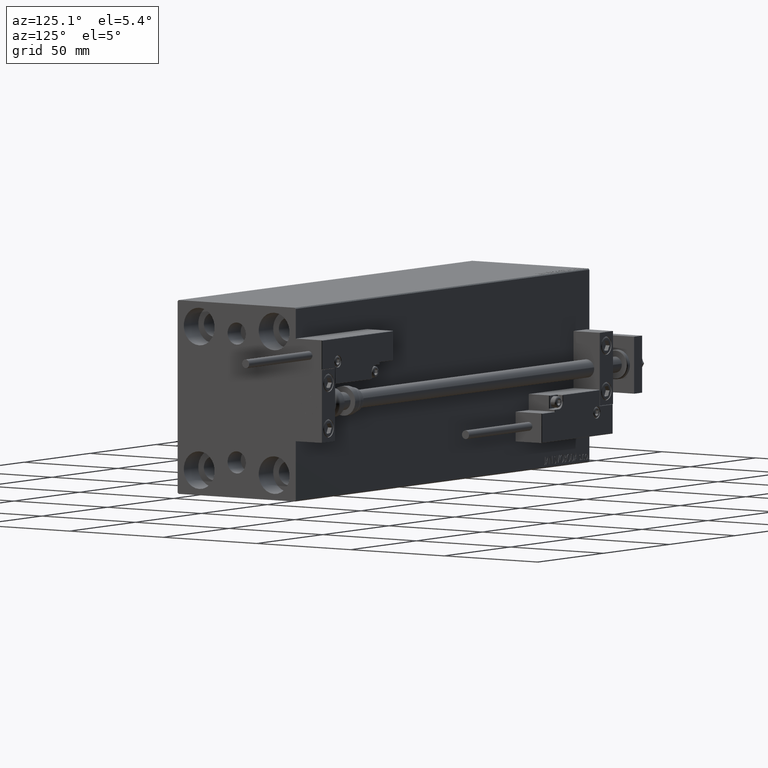
[diagram: clean part render]
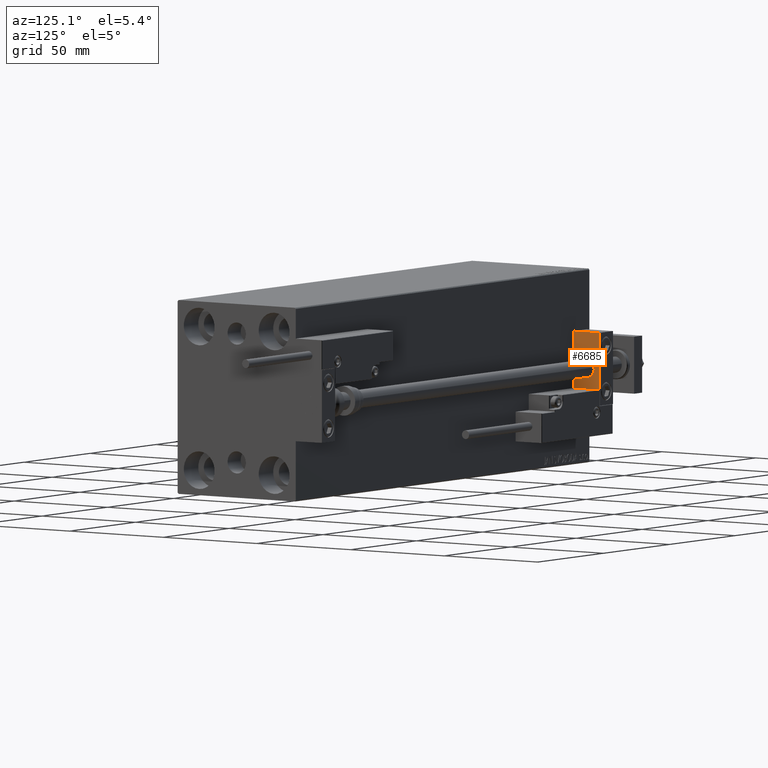
[diagram: same view with one face highlighted and labeled with its STEP entity id]
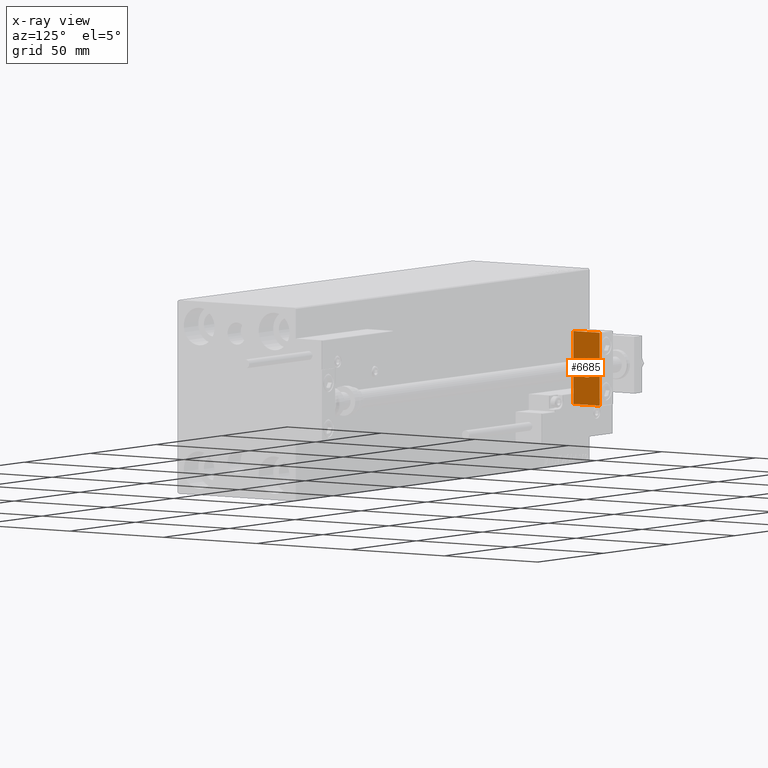
[diagram: x-ray of the same camera — body ghosted, the highlighted face saturated]
A machine part, auxiliary view. The second image highlights one B-rep face of the part: STEP entity #6685.
The next image is the same camera in x-ray: the body ghosted, the highlighted face saturated — about 0% of this face is hidden behind the body in this view.
In plain terms, the highlighted planar face has unit normal (1, 0, -0).
Its self-contained STEP definition (entity closure, byte-faithful):
#1271 = VERTEX_POINT ( 'NONE', #8453 ) ;
#1337 = CIRCLE ( 'NONE', #2121, 4.000000000000000000 ) ;
#1391 = EDGE_CURVE ( 'NONE', #28923, #1271, #7150, .T. ) ;
#1486 = CARTESIAN_POINT ( 'NONE',  ( 0.000000000000000000, -7.000000000000000000, 15.99999999999999289 ) ) ;
#2121 = AXIS2_PLACEMENT_3D ( 'NONE', #45190, #49744, #48989 ) ;
#3929 = ORIENTED_EDGE ( 'NONE', *, *, #25275, .F. ) ;
#5427 = VECTOR ( 'NONE', #28478, 1000.000000000000000 ) ;
#6685 = ADVANCED_FACE ( 'NONE', ( #45955, #41416 ), #22666, .T. ) ;
#7150 = CIRCLE ( 'NONE', #13570, 4.000000000000000000 ) ;
#7235 = DIRECTION ( 'NONE',  ( -0.000000000000000000, 0.000000000000000000, 1.000000000000000000 ) ) ;
#8001 = AXIS2_PLACEMENT_3D ( 'NONE', #14298, #37599, #7235 ) ;
#8453 = CARTESIAN_POINT ( 'NONE',  ( 0.000000000000000000, 0.000000000000000000, 4.000000000000000000 ) ) ;
#9648 = DIRECTION ( 'NONE',  ( 0.000000000000000000, -1.000000000000000000, 0.000000000000000000 ) ) ;
#10335 = DIRECTION ( 'NONE',  ( 0.000000000000000000, 0.000000000000000000, -1.000000000000000000 ) ) ;
#11817 = VERTEX_POINT ( 'NONE', #19178 ) ;
#12329 = VECTOR ( 'NONE', #9648, 1000.000000000000000 ) ;
#13189 = LINE ( 'NONE', #33427, #12329 ) ;
#13570 = AXIS2_PLACEMENT_3D ( 'NONE', #24148, #24406, #29693 ) ;
#13807 = CARTESIAN_POINT ( 'NONE',  ( 0.000000000000000000, 7.000000000000000000, 15.99999999999999289 ) ) ;
#14185 = EDGE_CURVE ( 'NONE', #15829, #44507, #13189, .T. ) ;
#14298 = CARTESIAN_POINT ( 'NONE',  ( 0.000000000000000000, 0.000000000000000000, 0.000000000000000000 ) ) ;
#15829 = VERTEX_POINT ( 'NONE', #13807 ) ;
#19172 = ORIENTED_EDGE ( 'NONE', *, *, #1391, .F. ) ;
#19178 = CARTESIAN_POINT ( 'NONE',  ( 0.000000000000000000, 7.000000000000000000, -16.00000000000000711 ) ) ;
#19765 = ORIENTED_EDGE ( 'NONE', *, *, #36370, .F. ) ;
#20531 = EDGE_LOOP ( 'NONE', ( #3929, #19172 ) ) ;
#20608 = CARTESIAN_POINT ( 'NONE',  ( 0.000000000000000000, 7.000000000000000000, -16.00000000000000711 ) ) ;
#22666 = PLANE ( 'NONE',  #8001 ) ;
#24148 = CARTESIAN_POINT ( 'NONE',  ( 0.000000000000000000, 0.000000000000000000, 0.000000000000000000 ) ) ;
#24406 = DIRECTION ( 'NONE',  ( -1.000000000000000000, -0.000000000000000000, -0.000000000000000000 ) ) ;
#25275 = EDGE_CURVE ( 'NONE', #1271, #28923, #1337, .T. ) ;
#25596 = EDGE_CURVE ( 'NONE', #11817, #25617, #36059, .T. ) ;
#25617 = VERTEX_POINT ( 'NONE', #35822 ) ;
#28478 = DIRECTION ( 'NONE',  ( 0.000000000000000000, -1.000000000000000000, 0.000000000000000000 ) ) ;
#28582 = ORIENTED_EDGE ( 'NONE', *, *, #41090, .T. ) ;
#28923 = VERTEX_POINT ( 'NONE', #42346 ) ;
#29693 = DIRECTION ( 'NONE',  ( 0.000000000000000000, 0.000000000000000000, 1.000000000000000000 ) ) ;
#30233 = EDGE_LOOP ( 'NONE', ( #19765, #44494, #28582, #39183 ) ) ;
#32294 = VECTOR ( 'NONE', #10335, 1000.000000000000000 ) ;
#33427 = CARTESIAN_POINT ( 'NONE',  ( 0.000000000000000000, 7.000000000000000000, 15.99999999999999289 ) ) ;
#34764 = CARTESIAN_POINT ( 'NONE',  ( 0.000000000000000000, 7.000000000000000000, 15.99999999999999289 ) ) ;
#35822 = CARTESIAN_POINT ( 'NONE',  ( 0.000000000000000000, -7.000000000000000000, -16.00000000000000711 ) ) ;
#36059 = LINE ( 'NONE', #20608, #5427 ) ;
#36370 = EDGE_CURVE ( 'NONE', #44507, #25617, #44258, .T. ) ;
#37599 = DIRECTION ( 'NONE',  ( -1.000000000000000000, 0.000000000000000000, -0.000000000000000000 ) ) ;
#39183 = ORIENTED_EDGE ( 'NONE', *, *, #25596, .T. ) ;
#39313 = DIRECTION ( 'NONE',  ( 0.000000000000000000, 0.000000000000000000, -1.000000000000000000 ) ) ;
#41090 = EDGE_CURVE ( 'NONE', #15829, #11817, #49725, .T. ) ;
#41416 = FACE_OUTER_BOUND ( 'NONE', #30233, .T. ) ;
#42346 = CARTESIAN_POINT ( 'NONE',  ( 0.000000000000000000, 4.898587196589412829E-16, -4.000000000000000000 ) ) ;
#44258 = LINE ( 'NONE', #48827, #32294 ) ;
#44494 = ORIENTED_EDGE ( 'NONE', *, *, #14185, .F. ) ;
#44507 = VERTEX_POINT ( 'NONE', #1486 ) ;
#45190 = CARTESIAN_POINT ( 'NONE',  ( 0.000000000000000000, 0.000000000000000000, 0.000000000000000000 ) ) ;
#45955 = FACE_BOUND ( 'NONE', #20531, .T. ) ;
#46220 = VECTOR ( 'NONE', #39313, 1000.000000000000000 ) ;
#48827 = CARTESIAN_POINT ( 'NONE',  ( 0.000000000000000000, -7.000000000000000000, 15.99999999999999289 ) ) ;
#48989 = DIRECTION ( 'NONE',  ( 0.000000000000000000, 0.000000000000000000, 1.000000000000000000 ) ) ;
#49725 = LINE ( 'NONE', #34764, #46220 ) ;
#49744 = DIRECTION ( 'NONE',  ( -1.000000000000000000, -0.000000000000000000, -0.000000000000000000 ) ) ;